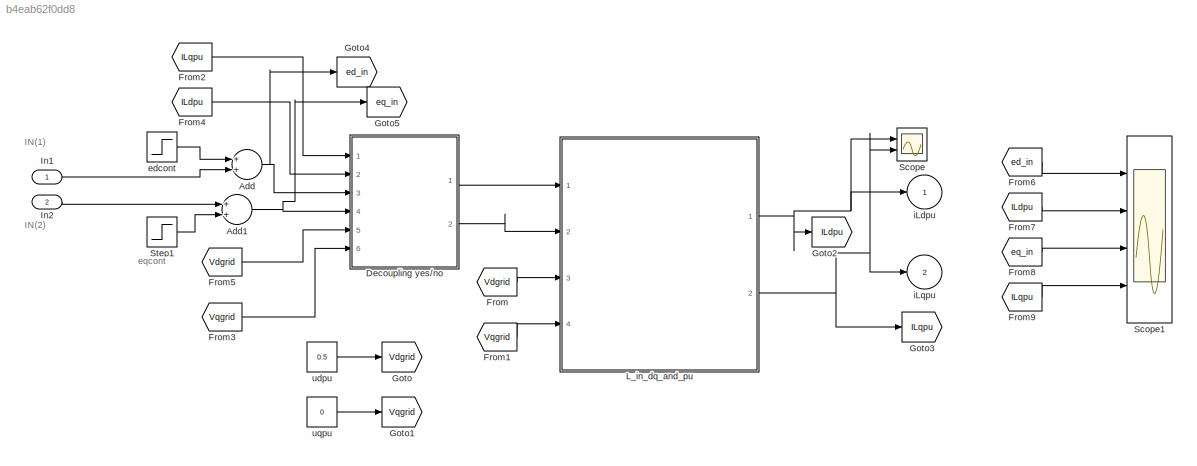
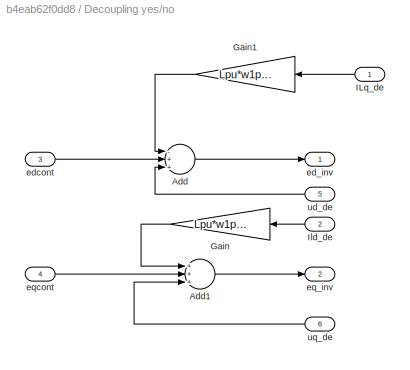
MODEL slx_b4eab62f0dd8
KIND model
CONFIG AbsTol = auto
CONFIG EnableMultiTasking = off
CONFIG FixedStep = 1e-4
CONFIG MaxStep = auto
CONFIG MinStep = auto
CONFIG RelTol = 1e-3
CONFIG SampleTimeConstraint = Unconstrained
CONFIG Solver = ode4
CONFIG SolverName = ode4
CONFIG StartTime = 0.0
CONFIG StopTime = 1
BLOCK [Sum] Add
  InputSameDT = off
  OutDataTypeStr = Inherit: Inherit via internal rule
  Ports = [2, 1]
  SaturateOnIntegerOverflow = off
BLOCK [Sum] Add1
  InputSameDT = off
  OutDataTypeStr = Inherit: Inherit via internal rule
  Ports = [2, 1]
  SaturateOnIntegerOverflow = off
BLOCK [SubSystem] Decoupling yes//no
  Ports = [6, 2]
  RequestExecContextInheritance = off
BLOCK [Sum] Decoupling yes//no/Add
  InputSameDT = off
  Inputs = -++
  OutDataTypeStr = Inherit: Inherit via internal rule
  Ports = [3, 1]
  SaturateOnIntegerOverflow = off
BLOCK [Sum] Decoupling yes//no/Add1
  InputSameDT = off
  Inputs = +++
  OutDataTypeStr = Inherit: Inherit via internal rule
  Ports = [3, 1]
  SaturateOnIntegerOverflow = off
BLOCK [Gain] Decoupling yes//no/Gain
  Gain = Lpu*w1pu*Dec
  OutDataTypeStr = Inherit: Inherit via internal rule
  ParamDataTypeStr = Inherit: Inherit via internal rule
  SaturateOnIntegerOverflow = off
BLOCK [Gain] Decoupling yes//no/Gain1
  Gain = Lpu*w1pu*Dec
  OutDataTypeStr = Inherit: Inherit via internal rule
  ParamDataTypeStr = Inherit: Inherit via internal rule
  SaturateOnIntegerOverflow = off
BLOCK [Inport] Decoupling yes//no/ILq_de
  IconDisplay = Port number
BLOCK [Inport] Decoupling yes//no/Ild_de
  IconDisplay = Port number
  Port = 2
BLOCK [Outport] Decoupling yes//no/ed_inv
  IconDisplay = Port number
  VectorParamsAs1DForOutWhenUnconnected = off
BLOCK [Inport] Decoupling yes//no/edcont
  IconDisplay = Port number
  Port = 3
BLOCK [Outport] Decoupling yes//no/eq_inv
  IconDisplay = Port number
  Port = 2
  VectorParamsAs1DForOutWhenUnconnected = off
BLOCK [Inport] Decoupling yes//no/eqcont
  IconDisplay = Port number
  Port = 4
BLOCK [Inport] Decoupling yes//no/ud_de
  IconDisplay = Port number
  Port = 5
BLOCK [Inport] Decoupling yes//no/uq_de
  IconDisplay = Port number
  Port = 6
BLOCK [From] From
  GotoTag = Vdgrid
BLOCK [From] From1
  GotoTag = Vqgrid
BLOCK [From] From2
  GotoTag = ILqpu
BLOCK [From] From3
  GotoTag = Vqgrid
BLOCK [From] From4
  GotoTag = ILdpu
BLOCK [From] From5
  GotoTag = Vdgrid
BLOCK [From] From6
  GotoTag = ed_in
BLOCK [From] From7
  GotoTag = ILdpu
BLOCK [From] From8
  GotoTag = eq_in
BLOCK [From] From9
  GotoTag = ILqpu
BLOCK [Goto] Goto
  GotoTag = Vdgrid
BLOCK [Goto] Goto1
  GotoTag = Vqgrid
BLOCK [Goto] Goto2
  GotoTag = ILdpu
BLOCK [Goto] Goto3
  GotoTag = ILqpu
BLOCK [Goto] Goto4
  GotoTag = ed_in
BLOCK [Goto] Goto5
  GotoTag = eq_in
BLOCK [Inport] In1
  IconDisplay = Port number
BLOCK [Inport] In2
  IconDisplay = Port number
  Port = 2
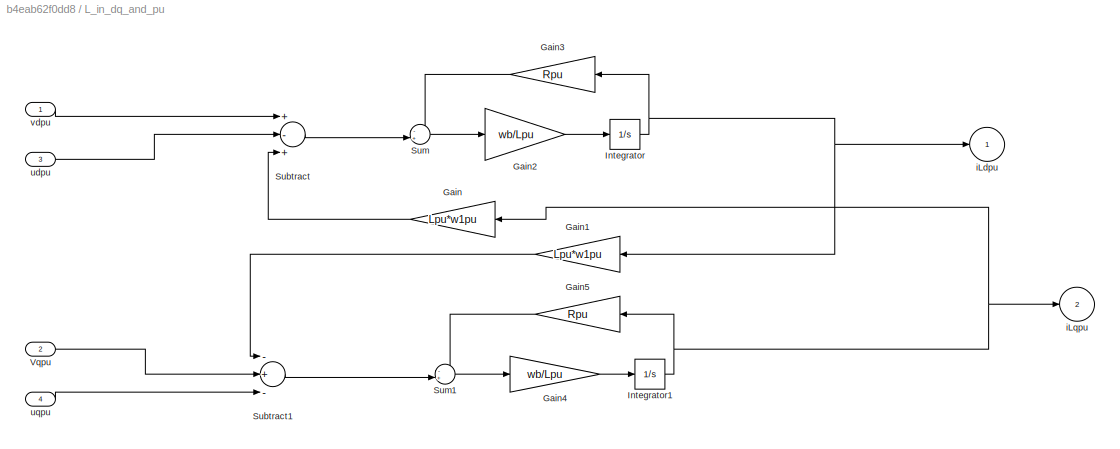
BLOCK [SubSystem] L_in_dq_and_pu
  Ports = [4, 2]
  RequestExecContextInheritance = off
BLOCK [Gain] L_in_dq_and_pu/Gain
  Gain = Lpu*w1pu
  OutDataTypeStr = Inherit: Inherit via internal rule
  ParamDataTypeStr = Inherit: Inherit via internal rule
  SaturateOnIntegerOverflow = off
BLOCK [Gain] L_in_dq_and_pu/Gain1
  Gain = Lpu*w1pu
  OutDataTypeStr = Inherit: Inherit via internal rule
  ParamDataTypeStr = Inherit: Inherit via internal rule
  SaturateOnIntegerOverflow = off
BLOCK [Gain] L_in_dq_and_pu/Gain2
  Gain = wb/Lpu
  OutDataTypeStr = Inherit: Inherit via internal rule
  ParamDataTypeStr = Inherit: Inherit via internal rule
  SaturateOnIntegerOverflow = off
BLOCK [Gain] L_in_dq_and_pu/Gain3
  Gain = Rpu
  OutDataTypeStr = Inherit: Inherit via internal rule
  ParamDataTypeStr = Inherit: Inherit via internal rule
  SaturateOnIntegerOverflow = off
BLOCK [Gain] L_in_dq_and_pu/Gain4
  Gain = wb/Lpu
  OutDataTypeStr = Inherit: Inherit via internal rule
  ParamDataTypeStr = Inherit: Inherit via internal rule
  SaturateOnIntegerOverflow = off
BLOCK [Gain] L_in_dq_and_pu/Gain5
  Gain = Rpu
  OutDataTypeStr = Inherit: Inherit via internal rule
  ParamDataTypeStr = Inherit: Inherit via internal rule
  SaturateOnIntegerOverflow = off
BLOCK [Integrator] L_in_dq_and_pu/Integrator
  Ports = [1, 1]
BLOCK [Integrator] L_in_dq_and_pu/Integrator1
  Ports = [1, 1]
BLOCK [Sum] L_in_dq_and_pu/Subtract
  InputSameDT = off
  Inputs = +-+
  OutDataTypeStr = Inherit: Inherit via internal rule
  Ports = [3, 1]
  SaturateOnIntegerOverflow = off
BLOCK [Sum] L_in_dq_and_pu/Subtract1
  InputSameDT = off
  Inputs = -+-
  OutDataTypeStr = Inherit: Inherit via internal rule
  Ports = [3, 1]
  SaturateOnIntegerOverflow = off
BLOCK [Sum] L_in_dq_and_pu/Sum
  IconShape = round
  InputSameDT = off
  Inputs = -+|
  OutDataTypeStr = Inherit: Inherit via internal rule
  Ports = [2, 1]
  SaturateOnIntegerOverflow = off
BLOCK [Sum] L_in_dq_and_pu/Sum1
  IconShape = round
  InputSameDT = off
  Inputs = -+|
  OutDataTypeStr = Inherit: Inherit via internal rule
  Ports = [2, 1]
  SaturateOnIntegerOverflow = off
BLOCK [Inport] L_in_dq_and_pu/Vqpu
  IconDisplay = Port number
  Port = 2
BLOCK [Outport] L_in_dq_and_pu/iLdpu
  IconDisplay = Port number
  VectorParamsAs1DForOutWhenUnconnected = off
BLOCK [Outport] L_in_dq_and_pu/iLqpu
  IconDisplay = Port number
  Port = 2
  VectorParamsAs1DForOutWhenUnconnected = off
BLOCK [Inport] L_in_dq_and_pu/udpu
  IconDisplay = Port number
  Port = 3
BLOCK [Inport] L_in_dq_and_pu/uqpu
  IconDisplay = Port number
  Port = 4
BLOCK [Inport] L_in_dq_and_pu/vdpu
  IconDisplay = Port number
BLOCK [Scope] Scope
  Floating = off
  NumInputPorts = 2
  Ports = [2]
  ScopeSpecificationString = Simulink.scopes.TimeScopeBlockCfg('CurrentConfiguration', extmgr.ConfigurationSet(extmgr.Configuration('Core','General UI',true),extmgr.Configuration('Core','Source UI',true),extmgr.Configuration('Sources','WiredSimulink',true),extmgr.Configuration('Visuals','Time Domain',true,'SerializedDisplays',{struct('MinYLimReal','-12.49994','MaxYLimReal','112.49944','YLabelReal','','MinYLimMag','0.00000','M...<+2060ch>
BLOCK [Scope] Scope1
  Floating = off
  NumInputPorts = 4
  Ports = [4]
  ScopeSpecificationString = Simulink.scopes.TimeScopeBlockCfg('CurrentConfiguration', extmgr.ConfigurationSet(extmgr.Configuration('Core','General UI',true),extmgr.Configuration('Core','Source UI',true),extmgr.Configuration('Sources','WiredSimulink',true,'DataLoggingVariableName','ScopeData1'),extmgr.Configuration('Visuals','Time Domain',true,'SerializedDisplays',{struct('MinYLimReal','-0.0625','MaxYLimReal','0.5625','YLabel...<+3373ch>
BLOCK [Step] Step1
  After = 0.5
  SampleTime = 0
  Time = 0.8
BLOCK [Step] edcont
  After = 0.5
  SampleTime = 0
  Time = 0.3
BLOCK [Outport] iLdpu
  IconDisplay = Port number
  VectorParamsAs1DForOutWhenUnconnected = off
BLOCK [Outport] iLqpu
  IconDisplay = Port number
  Port = 2
  VectorParamsAs1DForOutWhenUnconnected = off
BLOCK [Constant] udpu
  Value = 0.5
BLOCK [Constant] uqpu
  Value = 0
ANNOTATION (root): IN(1)
ANNOTATION (root): IN(2)
ANNOTATION (root): eqcont
NET Add1:1 -> Decoupling yes//no:4, Goto5:1
NET Add:1 -> Decoupling yes//no:3, Goto4:1
LINE Decoupling yes//no/Add1:1 -> Decoupling yes//no/eq_inv:1
LINE Decoupling yes//no/Add:1 -> Decoupling yes//no/ed_inv:1
LINE Decoupling yes//no/Gain1:1 -> Decoupling yes//no/Add:1
LINE Decoupling yes//no/Gain:1 -> Decoupling yes//no/Add1:1
LINE Decoupling yes//no/ILq_de:1 -> Decoupling yes//no/Gain1:1
LINE Decoupling yes//no/Ild_de:1 -> Decoupling yes//no/Gain:1
LINE Decoupling yes//no/edcont:1 -> Decoupling yes//no/Add:2
LINE Decoupling yes//no/eqcont:1 -> Decoupling yes//no/Add1:2
LINE Decoupling yes//no/ud_de:1 -> Decoupling yes//no/Add:3
LINE Decoupling yes//no/uq_de:1 -> Decoupling yes//no/Add1:3
LINE Decoupling yes//no:1 -> L_in_dq_and_pu:1
LINE Decoupling yes//no:2 -> L_in_dq_and_pu:2
LINE From1:1 -> L_in_dq_and_pu:4
LINE From2:1 -> Decoupling yes//no:1
LINE From3:1 -> Decoupling yes//no:6
LINE From4:1 -> Decoupling yes//no:2
LINE From5:1 -> Decoupling yes//no:5
LINE From6:1 -> Scope1:1
LINE From7:1 -> Scope1:2
LINE From8:1 -> Scope1:3
LINE From9:1 -> Scope1:4
LINE From:1 -> L_in_dq_and_pu:3
LINE In1:1 -> Add:2
LINE In2:1 -> Add1:1
LINE L_in_dq_and_pu/Gain1:1 -> L_in_dq_and_pu/Subtract1:1
LINE L_in_dq_and_pu/Gain2:1 -> L_in_dq_and_pu/Integrator:1
LINE L_in_dq_and_pu/Gain3:1 -> L_in_dq_and_pu/Sum:1
LINE L_in_dq_and_pu/Gain4:1 -> L_in_dq_and_pu/Integrator1:1
LINE L_in_dq_and_pu/Gain5:1 -> L_in_dq_and_pu/Sum1:1
LINE L_in_dq_and_pu/Gain:1 -> L_in_dq_and_pu/Subtract:3
NET L_in_dq_and_pu/Integrator1:1 -> L_in_dq_and_pu/Gain5:1, L_in_dq_and_pu/Gain:1, L_in_dq_and_pu/iLqpu:1
NET L_in_dq_and_pu/Integrator:1 -> L_in_dq_and_pu/Gain1:1, L_in_dq_and_pu/Gain3:1, L_in_dq_and_pu/iLdpu:1
LINE L_in_dq_and_pu/Subtract1:1 -> L_in_dq_and_pu/Sum1:2
LINE L_in_dq_and_pu/Subtract:1 -> L_in_dq_and_pu/Sum:2
LINE L_in_dq_and_pu/Sum1:1 -> L_in_dq_and_pu/Gain4:1
LINE L_in_dq_and_pu/Sum:1 -> L_in_dq_and_pu/Gain2:1
LINE L_in_dq_and_pu/Vqpu:1 -> L_in_dq_and_pu/Subtract1:2
LINE L_in_dq_and_pu/udpu:1 -> L_in_dq_and_pu/Subtract:2
LINE L_in_dq_and_pu/uqpu:1 -> L_in_dq_and_pu/Subtract1:3
LINE L_in_dq_and_pu/vdpu:1 -> L_in_dq_and_pu/Subtract:1
NET L_in_dq_and_pu:1 -> Goto2:1, Scope:1, iLdpu:1
NET L_in_dq_and_pu:2 -> Goto3:1, Scope:2, iLqpu:1
LINE Step1:1 -> Add1:2
LINE edcont:1 -> Add:1
LINE udpu:1 -> Goto:1
LINE uqpu:1 -> Goto1:1
note: NET lines group one-source signal fan-out (src -> all destinations, sorted); 1:1 wires keep LINE
